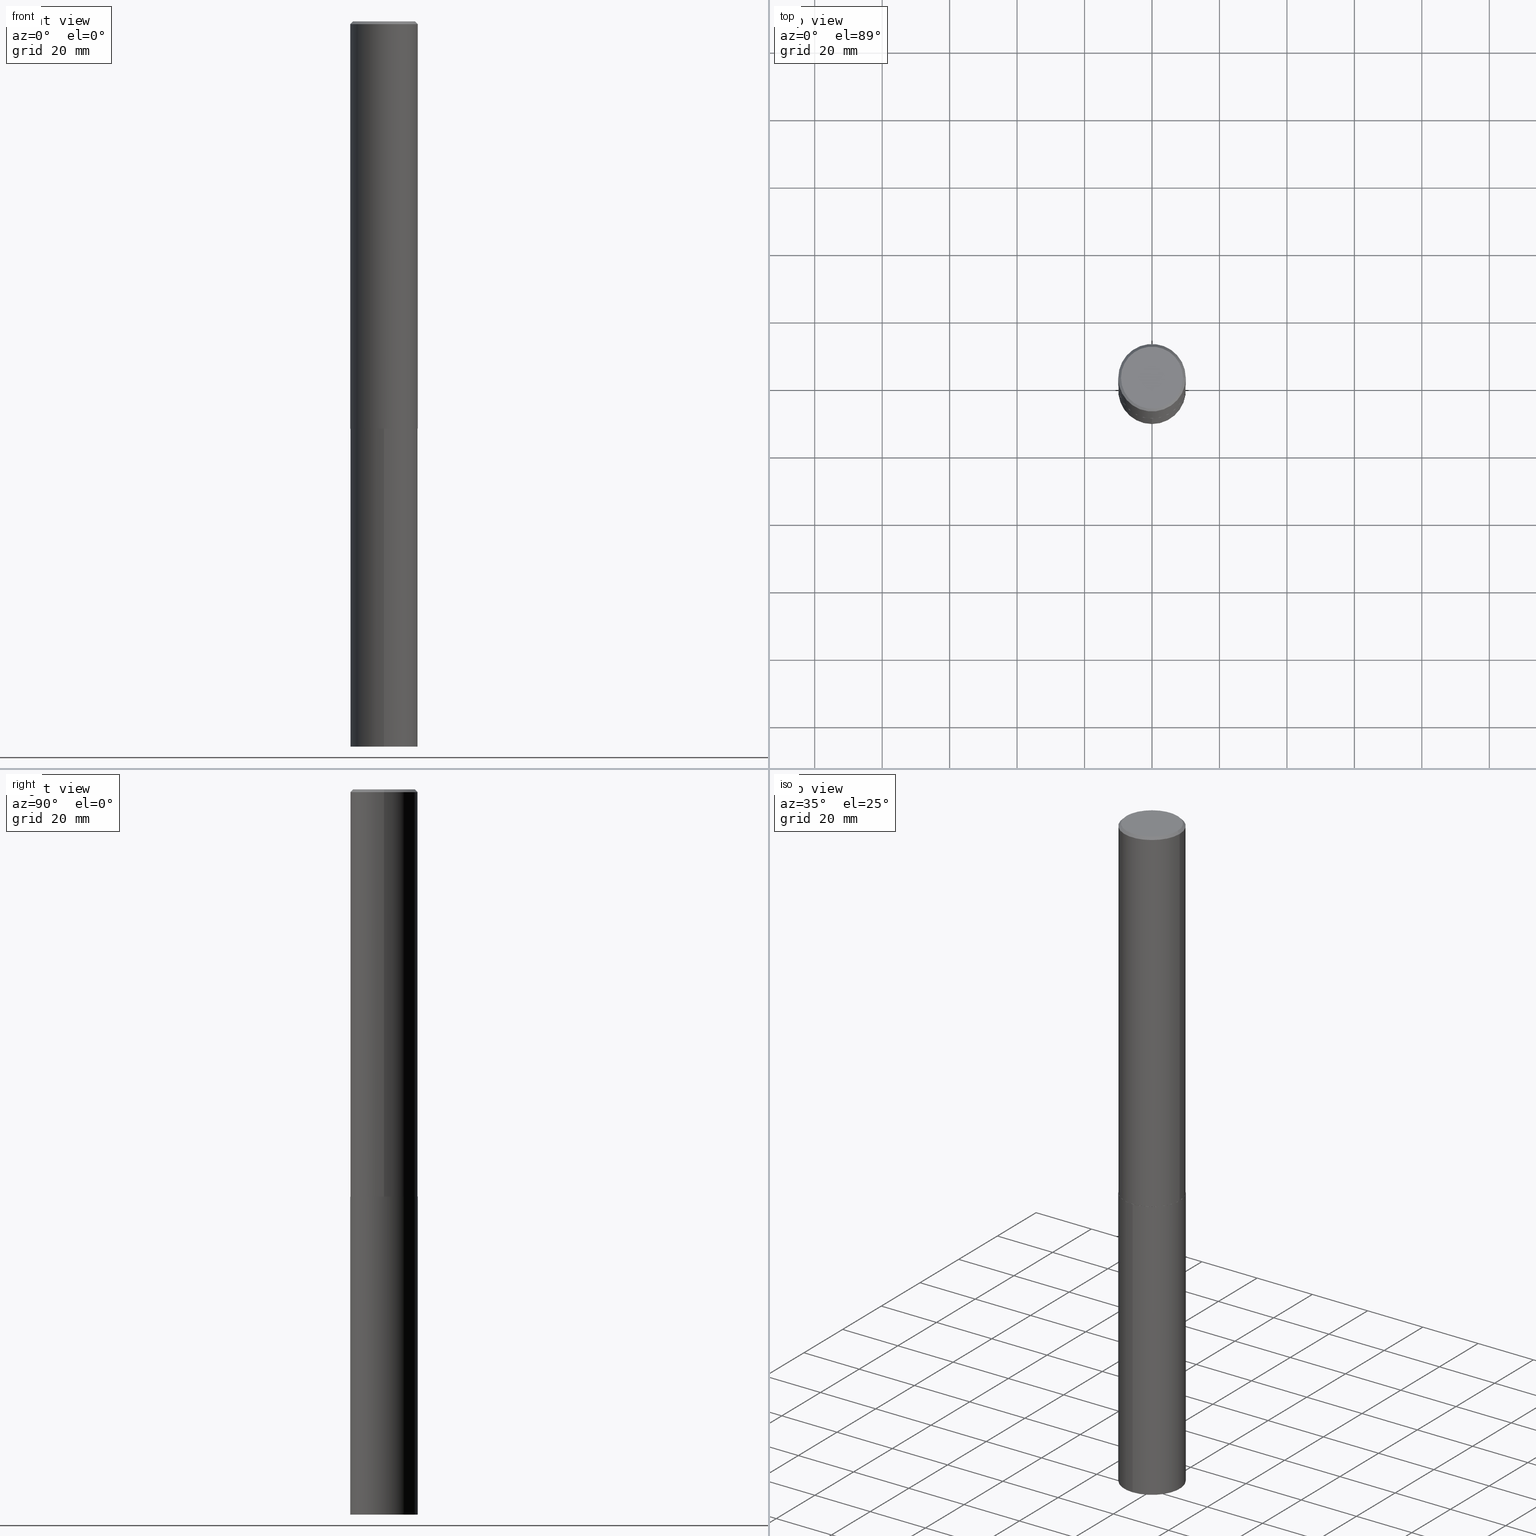
[diagram: canonical four-view strip — front | top / right | iso, engineering-drawing reading convention]
A machine part, canonical four-view strip (front | top / right | iso — engineering-drawing reading convention). The complete STEP part file that produces these views, byte-faithful:
ISO-10303-21;
HEADER;
FILE_DESCRIPTION (( 'STEP AP203' ),
    '1' );
FILE_NAME ('67925.STEP',
    '2024-04-23T12:55:20',
    ( '' ),
    ( '' ),
    'SwSTEP 2.0',
    'SolidWorks 2023',
    '' );
FILE_SCHEMA (( 'CONFIG_CONTROL_DESIGN' ));
ENDSEC;

DATA;
#1 = CC_DESIGN_APPROVAL ( #75, ( #144 ) ) ;
#2 = AXIS2_PLACEMENT_3D ( 'NONE', #231, #213, #137 ) ;
#3 = ORIENTED_EDGE ( 'NONE', *, *, #90, .T. ) ;
#4 = CARTESIAN_POINT ( 'NONE',  ( 0.000000000000000000, 0.000000000000000000, 0.000000000000000000 ) ) ;
#5 = DIRECTION ( 'NONE',  ( -2.445468806185136597E-29, 3.491481338843145583E-15, 1.000000000000000000 ) ) ;
#6 =( NAMED_UNIT ( * ) SI_UNIT ( $, .STERADIAN. ) SOLID_ANGLE_UNIT ( ) );
#7 = CYLINDRICAL_SURFACE ( 'NONE', #339, 0.3937000000000000499 ) ;
#8 = DIRECTION ( 'NONE',  ( 2.445333828195245890E-29, -3.491674635007138551E-15, -1.000000000000000000 ) ) ;
#9 = CONICAL_SURFACE ( 'NONE', #109, 0.3937000000000001054, 0.7853981633974465026 ) ;
#10 = CARTESIAN_POINT ( 'NONE',  ( 1.162478051708167059E-28, -1.659710569232478453E-14, -4.753600000000002268 ) ) ;
#11 = DIRECTION ( 'NONE',  ( -2.445333828195246450E-29, 3.491674635007138551E-15, 1.000000000000000000 ) ) ;
#12 = ORIENTED_EDGE ( 'NONE', *, *, #160, .T. ) ;
#13 = DIRECTION ( 'NONE',  ( -2.445333828195245890E-29, 3.491674635007138551E-15, 1.000000000000000000 ) ) ;
#14 = DIRECTION ( 'NONE',  ( 1.000000000000000000, -6.982962677686266711E-15, 4.876156645145296500E-29 ) ) ;
#15 = APPROVAL_STATUS ( 'not_yet_approved' ) ;
#16 = PERSON_AND_ORGANIZATION_ROLE ( 'classification_officer' ) ;
#17 = CIRCLE ( 'NONE', #241, 0.3932000000000014373 ) ;
#18 = DIRECTION ( 'NONE',  ( -6.982962677686265133E-15, -1.000000000000000000, 4.163344669033674845E-15 ) ) ;
#19 = EDGE_CURVE ( 'NONE', #362, #317, #208, .T. ) ;
#20 = DATE_TIME_ROLE ( 'classification_date' ) ;
#21 = ORIENTED_EDGE ( 'NONE', *, *, #327, .F. ) ;
#22 = LINE ( 'NONE', #356, #255 ) ;
#23 = VECTOR ( 'NONE', #175, 39.37007874015748143 ) ;
#24 = APPROVAL_PERSON_ORGANIZATION ( #154, #75, #234 ) ;
#25 = ORIENTED_EDGE ( 'NONE', *, *, #19, .T. ) ;
#26 = EDGE_CURVE ( 'NONE', #254, #85, #269, .T. ) ;
#27 = APPLICATION_CONTEXT ( 'configuration controlled 3d designs of mechanical parts and assemblies' ) ;
#28 = CARTESIAN_POINT ( 'NONE',  ( -0.3932000000000014373, -1.380060242814195234E-14, -4.753600000000002268 ) ) ;
#29 = ORIENTED_EDGE ( 'NONE', *, *, #314, .T. ) ;
#30 = ADVANCED_FACE ( 'NONE', ( #106 ), #228, .F. ) ;
#31 = ORIENTED_EDGE ( 'NONE', *, *, #44, .F. ) ;
#32 = CARTESIAN_POINT ( 'NONE',  ( 1.162478051708167059E-28, -1.659710569232478453E-14, -4.753600000000002268 ) ) ;
#33 = AXIS2_PLACEMENT_3D ( 'NONE', #357, #76, #157 ) ;
#34 = ORIENTED_EDGE ( 'NONE', *, *, #88, .F. ) ;
#35 = CC_DESIGN_DATE_AND_TIME_ASSIGNMENT ( #80, #46, ( #128 ) ) ;
#36 = MANIFOLD_SOLID_BREP ( 'Body-Move/Copy2[2]', #199 ) ;
#37 = VERTEX_POINT ( 'NONE', #28 ) ;
#38 = APPROVAL ( #174, 'UNSPECIFIED' ) ;
#39 =( NAMED_UNIT ( * ) PLANE_ANGLE_UNIT ( ) SI_UNIT ( $, .RADIAN. ) );
#40 = CARTESIAN_POINT ( 'NONE',  ( 1.162478051708167059E-28, -1.659710569232478453E-14, -4.753600000000002268 ) ) ;
#41 = LINE ( 'NONE', #227, #23 ) ;
#42 = DIRECTION ( 'NONE',  ( -2.445468806185136597E-29, 3.491481338843145583E-15, 1.000000000000000000 ) ) ;
#43 = DIRECTION ( 'NONE',  ( 0.7071067811862576935, -2.468850131079221129E-15, 0.7071067811868373409 ) ) ;
#44 = EDGE_CURVE ( 'NONE', #313, #63, #260, .T. ) ;
#45 = EDGE_LOOP ( 'NONE', ( #185, #29, #278, #83 ) ) ;
#46 = DATE_TIME_ROLE ( 'creation_date' ) ;
#47 = LINE ( 'NONE', #265, #310 ) ;
#48 = CARTESIAN_POINT ( 'NONE',  ( -2.749192406204966465E-15, -0.3937000000000166477, -4.753600000000000492 ) ) ;
#49 = AXIS2_PLACEMENT_3D ( 'NONE', #132, #103, #74 ) ;
#50 = DESIGN_CONTEXT ( 'detailed design', #27, 'design' ) ;
#51 = EDGE_CURVE ( 'NONE', #362, #366, #161, .T. ) ;
#52 = COORDINATED_UNIVERSAL_TIME_OFFSET ( 5, 0, .BEHIND. ) ;
#53 = DIRECTION ( 'NONE',  ( 1.000000000000000000, -6.982962677686261977E-15, 0.000000000000000000 ) ) ;
#54 = ORIENTED_EDGE ( 'NONE', *, *, #141, .T. ) ;
#55 = EDGE_LOOP ( 'NONE', ( #283, #3, #166, #280 ) ) ;
#56 = CIRCLE ( 'NONE', #288, 0.3937000000000006605 ) ;
#57 = VERTEX_POINT ( 'NONE', #202 ) ;
#58 = ADVANCED_FACE ( 'NONE', ( #343 ), #69, .T. ) ;
#59 = ORIENTED_EDGE ( 'NONE', *, *, #68, .F. ) ;
#60 = VECTOR ( 'NONE', #229, 39.37007874015748143 ) ;
#61 = APPROVAL ( #299, 'UNSPECIFIED' ) ;
#62 = EDGE_LOOP ( 'NONE', ( #210, #224, #335, #93 ) ) ;
#63 = VERTEX_POINT ( 'NONE', #257 ) ;
#64 = CIRCLE ( 'NONE', #120, 0.3624500000000000499 ) ;
#65 = FACE_OUTER_BOUND ( 'NONE', #124, .T. ) ;
#66 = APPROVAL_ROLE ( '' ) ;
#67 = ORIENTED_EDGE ( 'NONE', *, *, #256, .T. ) ;
#68 = EDGE_CURVE ( 'NONE', #37, #139, #319, .T. ) ;
#69 = CYLINDRICAL_SURFACE ( 'NONE', #284, 0.3937000000000003830 ) ;
#70 = CARTESIAN_POINT ( 'NONE',  ( -1.178467787315321927E-46, 1.682539673960461744E-32, 4.818985154644842843E-18 ) ) ;
#71 = DIRECTION ( 'NONE',  ( -2.438088387897960049E-29, 3.491481338843145188E-15, 1.000000000000000000 ) ) ;
#72 = CIRCLE ( 'NONE', #250, 0.3937000000000000499 ) ;
#73 = DIRECTION ( 'NONE',  ( -2.445468806185136597E-29, 3.491481338843145583E-15, 1.000000000000000000 ) ) ;
#74 = DIRECTION ( 'NONE',  ( -1.000000000000000000, 6.982962677686266711E-15, 0.000000000000000000 ) ) ;
#75 = APPROVAL ( #15, 'UNSPECIFIED' ) ;
#76 = DIRECTION ( 'NONE',  ( -2.445468806185136597E-29, 3.491481338843145583E-15, 1.000000000000000000 ) ) ;
#77 = CALENDAR_DATE ( 2024, 23, 4 ) ;
#78 = AXIS2_PLACEMENT_3D ( 'NONE', #149, #205, #320 ) ;
#79 = UNCERTAINTY_MEASURE_WITH_UNIT (LENGTH_MEASURE( 1.000000000000000082E-05 ), #98, 'distance_accuracy_value', 'NONE');
#80 = DATE_AND_TIME ( #209, #261 ) ;
#81 = LINE ( 'NONE', #133, #142 ) ;
#82 = COORDINATED_UNIVERSAL_TIME_OFFSET ( 5, 0, .BEHIND. ) ;
#83 = ORIENTED_EDGE ( 'NONE', *, *, #51, .F. ) ;
#84 = DIRECTION ( 'NONE',  ( 1.000000000000000000, -6.982962677686266711E-15, 4.876176775795935793E-29 ) ) ;
#85 = VERTEX_POINT ( 'NONE', #196 ) ;
#86 = AXIS2_PLACEMENT_3D ( 'NONE', #184, #118, #53 ) ;
#87 = ORGANIZATION ( 'UNSPECIFIED', 'UNSPECIFIED', '' ) ;
#88 = EDGE_CURVE ( 'NONE', #57, #366, #117, .T. ) ;
#89 = ORIENTED_EDGE ( 'NONE', *, *, #346, .F. ) ;
#90 = EDGE_CURVE ( 'NONE', #37, #313, #129, .T. ) ;
#91 = ORIENTED_EDGE ( 'NONE', *, *, #238, .T. ) ;
#92 = DIRECTION ( 'NONE',  ( -2.445468806185136597E-29, 3.491481338843145583E-15, 1.000000000000000000 ) ) ;
#93 = ORIENTED_EDGE ( 'NONE', *, *, #252, .F. ) ;
#94 = ORIENTED_EDGE ( 'NONE', *, *, #314, .F. ) ;
#95 = AXIS2_PLACEMENT_3D ( 'NONE', #237, #107, #211 ) ;
#96 = FACE_OUTER_BOUND ( 'NONE', #194, .T. ) ;
#97 = LENGTH_MEASURE_WITH_UNIT ( LENGTH_MEASURE( 0.02539999999999999897 ), #192 );
#98 =( CONVERSION_BASED_UNIT ( 'INCH', #97 ) LENGTH_UNIT ( ) NAMED_UNIT ( #300 ) );
#99 = CARTESIAN_POINT ( 'NONE',  ( 7.642090019328588649E-31, -1.091087918388488171E-16, -0.03125000000000014572 ) ) ;
#100 = PRODUCT_DEFINITION_SHAPE ( 'NONE', 'NONE',  #128 ) ;
#101 = CARTESIAN_POINT ( 'NONE',  ( 1.162478051708167059E-28, -1.659710569232478768E-14, -4.753600000000002268 ) ) ;
#102 = CIRCLE ( 'NONE', #178, 0.3937000000000000499 ) ;
#103 = DIRECTION ( 'NONE',  ( 2.445468806185136597E-29, -3.491481338843145583E-15, -1.000000000000000000 ) ) ;
#104 = CARTESIAN_POINT ( 'NONE',  ( 1.162355778267857779E-28, -1.659535995165536539E-14, -4.753100000000002545 ) ) ;
#105 = CC_DESIGN_DATE_AND_TIME_ASSIGNMENT ( #274, #20, ( #325 ) ) ;
#106 = FACE_OUTER_BOUND ( 'NONE', #216, .T. ) ;
#107 = DIRECTION ( 'NONE',  ( -2.445468806185136597E-29, 3.491481338843145583E-15, 1.000000000000000000 ) ) ;
#108 = CYLINDRICAL_SURFACE ( 'NONE', #354, 0.3937000000000003830 ) ;
#109 = AXIS2_PLACEMENT_3D ( 'NONE', #291, #326, #258 ) ;
#110 = FACE_OUTER_BOUND ( 'NONE', #337, .T. ) ;
#111 = CC_DESIGN_APPROVAL ( #38, ( #325 ) ) ;
#112 = ORIENTED_EDGE ( 'NONE', *, *, #90, .F. ) ;
#113 = DATE_AND_TIME ( #212, #312 ) ;
#114 = CARTESIAN_POINT ( 'NONE',  ( 4.294120729018676207E-29, -5.304802446443999090E-14, -8.464600000000000790 ) ) ;
#115 = PERSON_AND_ORGANIZATION_ROLE ( 'creator' ) ;
#116 = EDGE_CURVE ( 'NONE', #317, #362, #64, .T. ) ;
#117 = CIRCLE ( 'NONE', #332, 0.3937000000000001054 ) ;
#118 = DIRECTION ( 'NONE',  ( -2.445468806185136597E-29, 3.491481338843145583E-15, 1.000000000000000000 ) ) ;
#119 = DIRECTION ( 'NONE',  ( -6.982962677686265133E-15, -1.000000000000000000, 2.775563112689116301E-15 ) ) ;
#120 = AXIS2_PLACEMENT_3D ( 'NONE', #318, #73, #123 ) ;
#121 = ORIENTED_EDGE ( 'NONE', *, *, #141, .F. ) ;
#122 = DIRECTION ( 'NONE',  ( 1.000000000000000000, -6.982962677686268288E-15, 0.000000000000000000 ) ) ;
#123 = DIRECTION ( 'NONE',  ( 1.000000000000000000, -6.982962677686266711E-15, 4.876156645145296500E-29 ) ) ;
#124 = EDGE_LOOP ( 'NONE', ( #195, #165, #218, #286 ) ) ;
#125 = DIRECTION ( 'NONE',  ( -6.982962677686265133E-15, -1.000000000000000000, 4.163344669033674845E-15 ) ) ;
#126 = CONICAL_SURFACE ( 'NONE', #49, 0.3937000000000001054, 0.7853981633974465026 ) ;
#127 = LINE ( 'NONE', #349, #143 ) ;
#128 = PRODUCT_DEFINITION ( 'UNKNOWN', '', #144, #50 ) ;
#129 = LINE ( 'NONE', #350, #158 ) ;
#130 = PLANE ( 'NONE',  #150 ) ;
#131 = PRODUCT ( '67925', '67925', '', ( #347 ) ) ;
#132 = CARTESIAN_POINT ( 'NONE',  ( 7.642090019328588649E-31, -1.091087918388488171E-16, -0.03125000000000014572 ) ) ;
#133 = CARTESIAN_POINT ( 'NONE',  ( -0.3937000000000003830, 2.797406750687517153E-15, -1.936584745033358137E-29 ) ) ;
#134 = CARTESIAN_POINT ( 'NONE',  ( -2.749192406204875746E-15, -0.3937000000000295818, -8.464600000000000790 ) ) ;
#135 = PERSON_AND_ORGANIZATION ( #316, #87 ) ;
#136 = CONICAL_SURFACE ( 'NONE', #95, 0.3937000000000006605, 0.7853981633970383847 ) ;
#137 = DIRECTION ( 'NONE',  ( 1.000000000000000000, -6.982962677686261977E-15, 0.000000000000000000 ) ) ;
#138 = CC_DESIGN_APPROVAL ( #61, ( #128 ) ) ;
#139 = VERTEX_POINT ( 'NONE', #198 ) ;
#140 = ADVANCED_FACE ( 'NONE', ( #65 ), #172, .T. ) ;
#141 = EDGE_CURVE ( 'NONE', #63, #57, #47, .T. ) ;
#142 = VECTOR ( 'NONE', #186, 39.37007874015748143 ) ;
#143 = VECTOR ( 'NONE', #43, 39.37007874015748143 ) ;
#144 = PRODUCT_DEFINITION_FORMATION_WITH_SPECIFIED_SOURCE ( 'ANY', '', #131, .NOT_KNOWN. ) ;
#145 = ADVANCED_FACE ( 'NONE', ( #110 ), #108, .T. ) ;
#146 = DIRECTION ( 'NONE',  ( -2.445333828195246450E-29, 3.491674635007138551E-15, 1.000000000000000000 ) ) ;
#147 = ADVANCED_FACE ( 'NONE', ( #155 ), #267, .T. ) ;
#148 = CC_DESIGN_PERSON_AND_ORGANIZATION_ASSIGNMENT ( #223, #214, ( #144 ) ) ;
#149 = CARTESIAN_POINT ( 'NONE',  ( 0.000000000000000000, 0.000000000000000000, 0.000000000000000000 ) ) ;
#150 = AXIS2_PLACEMENT_3D ( 'NONE', #323, #71, #179 ) ;
#151 = DIRECTION ( 'NONE',  ( -6.982962677686265133E-15, -1.000000000000000000, 2.775563112689116301E-15 ) ) ;
#152 = DIRECTION ( 'NONE',  ( -2.445468806185136597E-29, 3.491481338843145583E-15, 1.000000000000000000 ) ) ;
#153 = EDGE_CURVE ( 'NONE', #63, #313, #56, .T. ) ;
#154 = PERSON_AND_ORGANIZATION ( #316, #87 ) ;
#155 = FACE_OUTER_BOUND ( 'NONE', #55, .T. ) ;
#156 = MANIFOLD_SOLID_BREP ( 'Body-Move/Copy2[1]', #296 ) ;
#157 = DIRECTION ( 'NONE',  ( 1.000000000000000000, -6.982962677686266711E-15, 0.000000000000000000 ) ) ;
#158 = VECTOR ( 'NONE', #324, 39.37007874015748143 ) ;
#159 = FACE_OUTER_BOUND ( 'NONE', #225, .T. ) ;
#160 = EDGE_CURVE ( 'NONE', #313, #366, #81, .T. ) ;
#161 = LINE ( 'NONE', #334, #60 ) ;
#162 = DIRECTION ( 'NONE',  ( -6.982962677686265133E-15, -1.000000000000000000, 4.163344669033674845E-15 ) ) ;
#163 = EDGE_LOOP ( 'NONE', ( #307, #12, #34, #121 ) ) ;
#164 = AXIS2_PLACEMENT_3D ( 'NONE', #70, #303, #14 ) ;
#165 = ORIENTED_EDGE ( 'NONE', *, *, #26, .T. ) ;
#166 = ORIENTED_EDGE ( 'NONE', *, *, #153, .F. ) ;
#167 = AXIS2_PLACEMENT_3D ( 'NONE', #297, #11, #151 ) ;
#168 = VECTOR ( 'NONE', #236, 39.37007874015748143 ) ;
#169 = EDGE_CURVE ( 'NONE', #275, #281, #22, .T. ) ;
#170 = ORIENTED_EDGE ( 'NONE', *, *, #160, .F. ) ;
#171 = AXIS2_PLACEMENT_3D ( 'NONE', #262, #253, #119 ) ;
#172 = CYLINDRICAL_SURFACE ( 'NONE', #215, 0.3937000000000000499 ) ;
#173 = FACE_OUTER_BOUND ( 'NONE', #45, .T. ) ;
#174 = APPROVAL_STATUS ( 'not_yet_approved' ) ;
#175 = DIRECTION ( 'NONE',  ( 0.7071067811865462405, -7.319954787623251312E-15, -0.7071067811865487940 ) ) ;
#176 = ORIENTED_EDGE ( 'NONE', *, *, #244, .F. ) ;
#177 = SHAPE_DEFINITION_REPRESENTATION ( #100, #344 ) ;
#178 = AXIS2_PLACEMENT_3D ( 'NONE', #180, #264, #233 ) ;
#179 = DIRECTION ( 'NONE',  ( 1.000000000000000000, -6.982962677686265922E-15, 4.876176775795935793E-29 ) ) ;
#180 = CARTESIAN_POINT ( 'NONE',  ( 1.162478051708167059E-28, -1.659710569232478768E-14, -4.753600000000002268 ) ) ;
#181 = CARTESIAN_POINT ( 'NONE',  ( -0.3624500000000000499, 2.585529218446811143E-15, 4.818985154626951724E-18 ) ) ;
#182 = PERSON_AND_ORGANIZATION_ROLE ( 'design_owner' ) ;
#183 = CC_DESIGN_PERSON_AND_ORGANIZATION_ASSIGNMENT ( #217, #182, ( #131 ) ) ;
#184 = CARTESIAN_POINT ( 'NONE',  ( 1.162355778267857779E-28, -1.659535995165536539E-14, -4.753100000000002545 ) ) ;
#185 = ORIENTED_EDGE ( 'NONE', *, *, #116, .F. ) ;
#186 = DIRECTION ( 'NONE',  ( -2.445468806185136877E-29, 3.491481338843145188E-15, 1.000000000000000000 ) ) ;
#187 = ORIENTED_EDGE ( 'NONE', *, *, #116, .T. ) ;
#188 = ORIENTED_EDGE ( 'NONE', *, *, #206, .T. ) ;
#189 = CIRCLE ( 'NONE', #33, 0.3937000000000001054 ) ;
#190 = ADVANCED_FACE ( 'NONE', ( #159 ), #363, .F. ) ;
#191 = ORIENTED_EDGE ( 'NONE', *, *, #68, .T. ) ;
#192 =( LENGTH_UNIT ( ) NAMED_UNIT ( * ) SI_UNIT ( $, .METRE. ) );
#193 = CIRCLE ( 'NONE', #167, 0.3937000000000000499 ) ;
#194 = EDGE_LOOP ( 'NONE', ( #188, #222 ) ) ;
#195 = ORIENTED_EDGE ( 'NONE', *, *, #327, .T. ) ;
#196 = CARTESIAN_POINT ( 'NONE',  ( 2.797406750687722257E-15, 0.3936999999999834521, -4.753600000000004044 ) ) ;
#197 = ADVANCED_FACE ( 'NONE', ( #329 ), #126, .T. ) ;
#198 = CARTESIAN_POINT ( 'NONE',  ( 0.3932000000000014373, -1.934280661719103578E-14, -4.753600000000002268 ) ) ;
#199 = CLOSED_SHELL ( 'NONE', ( #282, #58, #147, #249, #276, #145, #197, #30 ) ) ;
#200 = EDGE_LOOP ( 'NONE', ( #94, #248, #311, #67 ) ) ;
#201 = PLANE ( 'NONE',  #333 ) ;
#202 = CARTESIAN_POINT ( 'NONE',  ( 0.3937000000000001054, -2.858301198043932712E-15, -0.03125000000000014572 ) ) ;
#203 = APPLICATION_CONTEXT ( 'configuration controlled 3d designs of mechanical parts and assemblies' ) ;
#204 = CARTESIAN_POINT ( 'NONE',  ( 7.018149083379765527E-29, -2.319406409856428312E-14, -4.753600000000002268 ) ) ;
#205 = DIRECTION ( 'NONE',  ( 0.000000000000000000, 0.000000000000000000, 1.000000000000000000 ) ) ;
#206 = EDGE_CURVE ( 'NONE', #281, #85, #102, .T. ) ;
#207 = DIRECTION ( 'NONE',  ( -2.445468806185136597E-29, 3.491481338843145583E-15, 1.000000000000000000 ) ) ;
#208 = CIRCLE ( 'NONE', #164, 0.3624500000000000499 ) ;
#209 = CALENDAR_DATE ( 2024, 23, 4 ) ;
#210 = ORIENTED_EDGE ( 'NONE', *, *, #26, .F. ) ;
#211 = DIRECTION ( 'NONE',  ( 1.000000000000000000, -6.982962677686261977E-15, 0.000000000000000000 ) ) ;
#212 = CALENDAR_DATE ( 2024, 23, 4 ) ;
#213 = DIRECTION ( 'NONE',  ( -2.445468806185136597E-29, 3.491481338843145583E-15, 1.000000000000000000 ) ) ;
#214 = PERSON_AND_ORGANIZATION_ROLE ( 'design_supplier' ) ;
#215 = AXIS2_PLACEMENT_3D ( 'NONE', #40, #146, #162 ) ;
#216 = EDGE_LOOP ( 'NONE', ( #25, #187 ) ) ;
#217 = PERSON_AND_ORGANIZATION ( #316, #87 ) ;
#218 = ORIENTED_EDGE ( 'NONE', *, *, #206, .F. ) ;
#219 = PERSON_AND_ORGANIZATION ( #316, #87 ) ;
#220 = DIRECTION ( 'NONE',  ( -6.982962677686265922E-15, -1.000000000000000000, 3.491674635007138551E-15 ) ) ;
#221 = ADVANCED_FACE ( 'NONE', ( #96 ), #201, .F. ) ;
#222 = ORIENTED_EDGE ( 'NONE', *, *, #252, .T. ) ;
#223 = PERSON_AND_ORGANIZATION ( #316, #87 ) ;
#224 = ORIENTED_EDGE ( 'NONE', *, *, #244, .T. ) ;
#225 = EDGE_LOOP ( 'NONE', ( #21, #176 ) ) ;
#226 = DIRECTION ( 'NONE',  ( 1.000000000000000000, -6.982962677686266711E-15, 0.000000000000000000 ) ) ;
#227 = CARTESIAN_POINT ( 'NONE',  ( 0.3937000000000001054, -2.810086853561501536E-15, -0.03125000000000014572 ) ) ;
#228 = PLANE ( 'NONE',  #345 ) ;
#229 = DIRECTION ( 'NONE',  ( -0.7071067811865462405, 2.468850131082243256E-15, -0.7071067811865487940 ) ) ;
#230 = PERSON_AND_ORGANIZATION ( #316, #87 ) ;
#231 = CARTESIAN_POINT ( 'NONE',  ( 1.162355778267857779E-28, -1.659535995165536539E-14, -4.753100000000002545 ) ) ;
#232 = AXIS2_PLACEMENT_3D ( 'NONE', #10, #92, #122 ) ;
#233 = DIRECTION ( 'NONE',  ( -6.982962677686265133E-15, -1.000000000000000000, 4.163344669033674845E-15 ) ) ;
#234 = APPROVAL_ROLE ( '' ) ;
#235 = CARTESIAN_POINT ( 'NONE',  ( 0.000000000000000000, 0.000000000000000000, 0.000000000000000000 ) ) ;
#236 = DIRECTION ( 'NONE',  ( -2.445333828195246450E-29, 3.491674635007138551E-15, 1.000000000000000000 ) ) ;
#237 = CARTESIAN_POINT ( 'NONE',  ( 1.162355778267857779E-28, -1.659535995165536539E-14, -4.753100000000002545 ) ) ;
#238 = EDGE_CURVE ( 'NONE', #139, #63, #127, .T. ) ;
#239 = PERSON_AND_ORGANIZATION ( #316, #87 ) ;
#240 = DIRECTION ( 'NONE',  ( -2.445468806185136877E-29, 3.491481338843145188E-15, 1.000000000000000000 ) ) ;
#241 = AXIS2_PLACEMENT_3D ( 'NONE', #290, #5, #305 ) ;
#242 = LOCAL_TIME ( 8, 55, 20.00000000000000000, #263 ) ;
#243 = DIRECTION ( 'NONE',  ( -2.445333828195246450E-29, 3.491674635007138551E-15, 1.000000000000000000 ) ) ;
#244 = EDGE_CURVE ( 'NONE', #254, #275, #193, .T. ) ;
#245 = PERSON_AND_ORGANIZATION_ROLE ( 'creator' ) ;
#246 = APPROVAL_DATE_TIME ( #308, #75 ) ;
#247 = CARTESIAN_POINT ( 'NONE',  ( -0.3937000000000001054, -5.554827621059586937E-15, -0.03125000000000014572 ) ) ;
#248 = ORIENTED_EDGE ( 'NONE', *, *, #19, .F. ) ;
#249 = ADVANCED_FACE ( 'NONE', ( #352 ), #130, .F. ) ;
#250 = AXIS2_PLACEMENT_3D ( 'NONE', #101, #270, #18 ) ;
#251 = EDGE_LOOP ( 'NONE', ( #89, #59 ) ) ;
#252 = EDGE_CURVE ( 'NONE', #85, #281, #72, .T. ) ;
#253 = DIRECTION ( 'NONE',  ( -2.445333828195246450E-29, 3.491674635007138551E-15, 1.000000000000000000 ) ) ;
#254 = VERTEX_POINT ( 'NONE', #301 ) ;
#255 = VECTOR ( 'NONE', #243, 39.37007874015748143 ) ;
#256 = EDGE_CURVE ( 'NONE', #366, #57, #189, .T. ) ;
#257 = CARTESIAN_POINT ( 'NONE',  ( 0.3937000000000006605, -1.934455235786044861E-14, -4.753100000000002545 ) ) ;
#258 = DIRECTION ( 'NONE',  ( -1.000000000000000000, 6.982962677686266711E-15, 0.000000000000000000 ) ) ;
#259 = DIRECTION ( 'NONE',  ( 1.000000000000000000, -6.982962677686266711E-15, 4.876176775795935793E-29 ) ) ;
#260 = CIRCLE ( 'NONE', #86, 0.3937000000000006605 ) ;
#261 = LOCAL_TIME ( 8, 55, 20.00000000000000000, #52 ) ;
#262 = CARTESIAN_POINT ( 'NONE',  ( 2.069941435351422877E-28, -2.955471026283627536E-14, -8.464600000000002566 ) ) ;
#263 = COORDINATED_UNIVERSAL_TIME_OFFSET ( 5, 0, .BEHIND. ) ;
#264 = DIRECTION ( 'NONE',  ( -2.445333828195246450E-29, 3.491674635007138551E-15, 1.000000000000000000 ) ) ;
#265 = CARTESIAN_POINT ( 'NONE',  ( 0.3937000000000003830, -2.749192406205085978E-15, 1.919750796630861853E-29 ) ) ;
#266 = ORIENTED_EDGE ( 'NONE', *, *, #44, .T. ) ;
#267 = CONICAL_SURFACE ( 'NONE', #2, 0.3937000000000006605, 0.7853981633970383847 ) ;
#268 = CC_DESIGN_PERSON_AND_ORGANIZATION_ASSIGNMENT ( #135, #115, ( #144 ) ) ;
#269 = LINE ( 'NONE', #272, #168 ) ;
#270 = DIRECTION ( 'NONE',  ( -2.445333828195246450E-29, 3.491674635007138551E-15, 1.000000000000000000 ) ) ;
#271 = APPLICATION_PROTOCOL_DEFINITION ( 'international standard', 'config_control_design', 1994, #27 ) ;
#272 = CARTESIAN_POINT ( 'NONE',  ( 2.797406750687630749E-15, 0.3936999999999834521, -4.753600000000004044 ) ) ;
#273 = DIRECTION ( 'NONE',  ( -2.445468806185136597E-29, 3.491481338843145583E-15, 1.000000000000000000 ) ) ;
#274 = DATE_AND_TIME ( #77, #304 ) ;
#275 = VERTEX_POINT ( 'NONE', #134 ) ;
#276 = ADVANCED_FACE ( 'NONE', ( #330 ), #136, .T. ) ;
#277 =( GEOMETRIC_REPRESENTATION_CONTEXT ( 3 ) GLOBAL_UNCERTAINTY_ASSIGNED_CONTEXT ( ( #79 ) ) GLOBAL_UNIT_ASSIGNED_CONTEXT ( ( #98, #39, #6 ) ) REPRESENTATION_CONTEXT ( 'NONE', 'WORKASPACE' ) );
#278 = ORIENTED_EDGE ( 'NONE', *, *, #88, .T. ) ;
#279 = LOCAL_TIME ( 8, 55, 20.00000000000000000, #82 ) ;
#280 = ORIENTED_EDGE ( 'NONE', *, *, #238, .F. ) ;
#281 = VERTEX_POINT ( 'NONE', #48 ) ;
#282 = ADVANCED_FACE ( 'NONE', ( #173 ), #9, .T. ) ;
#283 = ORIENTED_EDGE ( 'NONE', *, *, #346, .T. ) ;
#284 = AXIS2_PLACEMENT_3D ( 'NONE', #4, #42, #259 ) ;
#285 = APPROVAL_PERSON_ORGANIZATION ( #328, #61, #358 ) ;
#286 = ORIENTED_EDGE ( 'NONE', *, *, #169, .F. ) ;
#287 = FACE_OUTER_BOUND ( 'NONE', #62, .T. ) ;
#288 = AXIS2_PLACEMENT_3D ( 'NONE', #104, #273, #298 ) ;
#289 = CARTESIAN_POINT ( 'NONE',  ( -0.3937000000000006605, -1.379795320096784508E-14, -4.753100000000002545 ) ) ;
#290 = CARTESIAN_POINT ( 'NONE',  ( 1.162478051708167059E-28, -1.659710569232478453E-14, -4.753600000000002268 ) ) ;
#291 = CARTESIAN_POINT ( 'NONE',  ( 7.642090019328588649E-31, -1.091087918388488171E-16, -0.03125000000000014572 ) ) ;
#292 = ADVANCED_FACE ( 'NONE', ( #287 ), #7, .T. ) ;
#293 = CALENDAR_DATE ( 2024, 23, 4 ) ;
#294 = CARTESIAN_POINT ( 'NONE',  ( 0.3624500000000000499, -2.648337176426896805E-15, 4.818985154662952747E-18 ) ) ;
#295 = APPLICATION_PROTOCOL_DEFINITION ( 'international standard', 'config_control_design', 1994, #203 ) ;
#296 = CLOSED_SHELL ( 'NONE', ( #140, #190, #292, #221 ) ) ;
#297 = CARTESIAN_POINT ( 'NONE',  ( 2.069941435351422877E-28, -2.955471026283627536E-14, -8.464600000000002566 ) ) ;
#298 = DIRECTION ( 'NONE',  ( 1.000000000000000000, -6.982962677686261977E-15, 0.000000000000000000 ) ) ;
#299 = APPROVAL_STATUS ( 'not_yet_approved' ) ;
#300 = DIMENSIONAL_EXPONENTS ( 1.000000000000000000, 0.000000000000000000, 0.000000000000000000, 0.000000000000000000, 0.000000000000000000, 0.000000000000000000, 0.000000000000000000 ) ;
#301 = CARTESIAN_POINT ( 'NONE',  ( 2.797406750687676109E-15, 0.3936999999999704625, -8.464600000000004343 ) ) ;
#302 = AXIS2_PLACEMENT_3D ( 'NONE', #114, #13, #220 ) ;
#303 = DIRECTION ( 'NONE',  ( -2.445468806185136597E-29, 3.491481338843145583E-15, 1.000000000000000000 ) ) ;
#304 = LOCAL_TIME ( 8, 55, 20.00000000000000000, #359 ) ;
#305 = DIRECTION ( 'NONE',  ( 1.000000000000000000, -6.982962677686268288E-15, 0.000000000000000000 ) ) ;
#306 = ORIENTED_EDGE ( 'NONE', *, *, #256, .F. ) ;
#307 = ORIENTED_EDGE ( 'NONE', *, *, #153, .T. ) ;
#308 = DATE_AND_TIME ( #364, #279 ) ;
#309 = DIRECTION ( 'NONE',  ( -1.000000000000000000, 6.982962677686265922E-15, -4.876176775795935793E-29 ) ) ;
#310 = VECTOR ( 'NONE', #240, 39.37007874015748143 ) ;
#311 = ORIENTED_EDGE ( 'NONE', *, *, #51, .T. ) ;
#312 = LOCAL_TIME ( 8, 55, 20.00000000000000000, #360 ) ;
#313 = VERTEX_POINT ( 'NONE', #289 ) ;
#314 = EDGE_CURVE ( 'NONE', #317, #57, #41, .T. ) ;
#315 = CC_DESIGN_PERSON_AND_ORGANIZATION_ASSIGNMENT ( #239, #16, ( #325 ) ) ;
#316 = PERSON ( 'UNSPECIFIED', 'UNSPECIFIED', 'UNSPECIFIED', ('UNSPECIFIED'), ('UNSPECIFIED'), ('UNSPECIFIED') ) ;
#317 = VERTEX_POINT ( 'NONE', #294 ) ;
#318 = CARTESIAN_POINT ( 'NONE',  ( -1.178467787315321927E-46, 1.682539673960461744E-32, 4.818985154644842843E-18 ) ) ;
#319 = CIRCLE ( 'NONE', #232, 0.3932000000000014373 ) ;
#320 = DIRECTION ( 'NONE',  ( 1.000000000000000000, 0.000000000000000000, 0.000000000000000000 ) ) ;
#321 = APPROVAL_DATE_TIME ( #351, #38 ) ;
#322 = DIRECTION ( 'NONE',  ( -2.445333828195246450E-29, 3.491674635007138551E-15, 1.000000000000000000 ) ) ;
#323 = CARTESIAN_POINT ( 'NONE',  ( 1.623726982391899929E-28, -9.991758478345934552E-15, -4.753600000000002268 ) ) ;
#324 = DIRECTION ( 'NONE',  ( -0.7071067811862576935, 7.493145998869306553E-15, 0.7071067811868373409 ) ) ;
#325 = SECURITY_CLASSIFICATION ( '', '', #338 ) ;
#326 = DIRECTION ( 'NONE',  ( 2.445468806185136597E-29, -3.491481338843145583E-15, -1.000000000000000000 ) ) ;
#327 = EDGE_CURVE ( 'NONE', #275, #254, #342, .T. ) ;
#328 = PERSON_AND_ORGANIZATION ( #316, #87 ) ;
#329 = FACE_OUTER_BOUND ( 'NONE', #200, .T. ) ;
#330 = FACE_OUTER_BOUND ( 'NONE', #365, .T. ) ;
#331 = APPROVAL_DATE_TIME ( #113, #61 ) ;
#332 = AXIS2_PLACEMENT_3D ( 'NONE', #99, #207, #226 ) ;
#333 = AXIS2_PLACEMENT_3D ( 'NONE', #204, #8, #353 ) ;
#334 = CARTESIAN_POINT ( 'NONE',  ( -0.3937000000000001054, 2.640083614366234905E-15, -0.03125000000000014572 ) ) ;
#335 = ORIENTED_EDGE ( 'NONE', *, *, #169, .T. ) ;
#336 = DIRECTION ( 'NONE',  ( 2.438088387897960049E-29, -3.491481338843145188E-15, -1.000000000000000000 ) ) ;
#337 = EDGE_LOOP ( 'NONE', ( #170, #266, #54, #306 ) ) ;
#338 = SECURITY_CLASSIFICATION_LEVEL ( 'unclassified' ) ;
#339 = AXIS2_PLACEMENT_3D ( 'NONE', #32, #322, #125 ) ;
#340 = APPROVAL_PERSON_ORGANIZATION ( #230, #38, #66 ) ;
#341 = PRODUCT_RELATED_PRODUCT_CATEGORY ( 'detail', '', ( #131 ) ) ;
#342 = CIRCLE ( 'NONE', #171, 0.3937000000000000499 ) ;
#343 = FACE_OUTER_BOUND ( 'NONE', #163, .T. ) ;
#344 = ADVANCED_BREP_SHAPE_REPRESENTATION ( '67925', ( #156, #36, #78 ), #277 ) ;
#345 = AXIS2_PLACEMENT_3D ( 'NONE', #348, #336, #309 ) ;
#346 = EDGE_CURVE ( 'NONE', #139, #37, #17, .T. ) ;
#347 = MECHANICAL_CONTEXT ( 'NONE', #203, 'mechanical' ) ;
#348 = CARTESIAN_POINT ( 'NONE',  ( -5.892338936576609633E-47, 8.412698369802308719E-33, 2.409492577322421421E-18 ) ) ;
#349 = CARTESIAN_POINT ( 'NONE',  ( 0.3937000000000006605, -1.934455235786044861E-14, -4.753100000000002545 ) ) ;
#350 = CARTESIAN_POINT ( 'NONE',  ( -0.3937000000000006605, -1.379795320096784508E-14, -4.753100000000002545 ) ) ;
#351 = DATE_AND_TIME ( #293, #242 ) ;
#352 = FACE_OUTER_BOUND ( 'NONE', #251, .T. ) ;
#353 = DIRECTION ( 'NONE',  ( 6.982962677686265922E-15, 1.000000000000000000, -3.491674635007138551E-15 ) ) ;
#354 = AXIS2_PLACEMENT_3D ( 'NONE', #235, #152, #84 ) ;
#355 = CC_DESIGN_SECURITY_CLASSIFICATION ( #325, ( #144 ) ) ;
#356 = CARTESIAN_POINT ( 'NONE',  ( -2.749192406204966465E-15, -0.3937000000000166477, -4.753600000000000492 ) ) ;
#357 = CARTESIAN_POINT ( 'NONE',  ( 7.642090019328588649E-31, -1.091087918388488171E-16, -0.03125000000000014572 ) ) ;
#358 = APPROVAL_ROLE ( '' ) ;
#359 = COORDINATED_UNIVERSAL_TIME_OFFSET ( 5, 0, .BEHIND. ) ;
#360 = COORDINATED_UNIVERSAL_TIME_OFFSET ( 5, 0, .BEHIND. ) ;
#361 = CC_DESIGN_PERSON_AND_ORGANIZATION_ASSIGNMENT ( #219, #245, ( #128 ) ) ;
#362 = VERTEX_POINT ( 'NONE', #181 ) ;
#363 = PLANE ( 'NONE',  #302 ) ;
#364 = CALENDAR_DATE ( 2024, 23, 4 ) ;
#365 = EDGE_LOOP ( 'NONE', ( #112, #191, #91, #31 ) ) ;
#366 = VERTEX_POINT ( 'NONE', #247 ) ;
ENDSEC;
END-ISO-10303-21;
